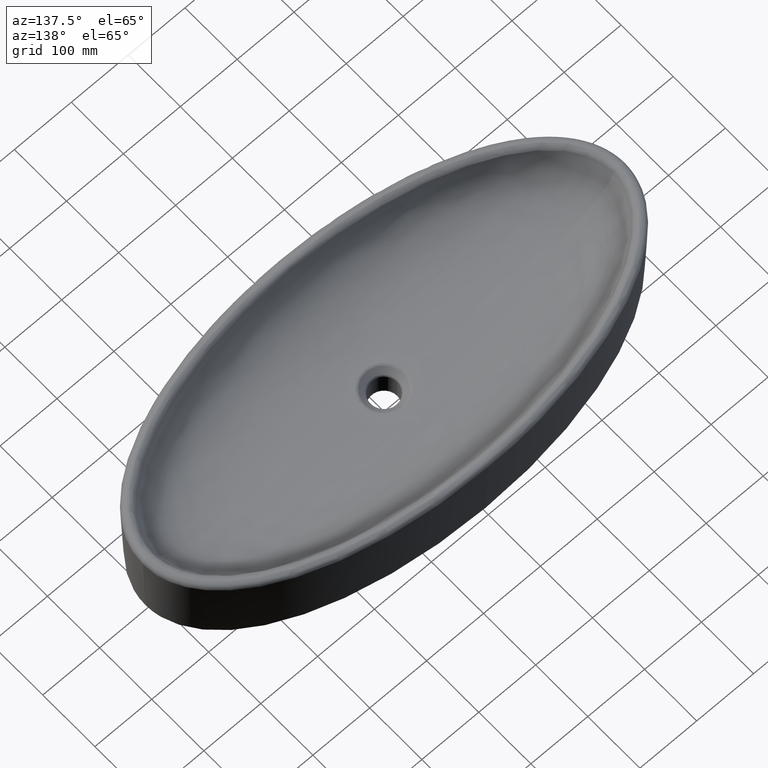
[diagram: clean part render]
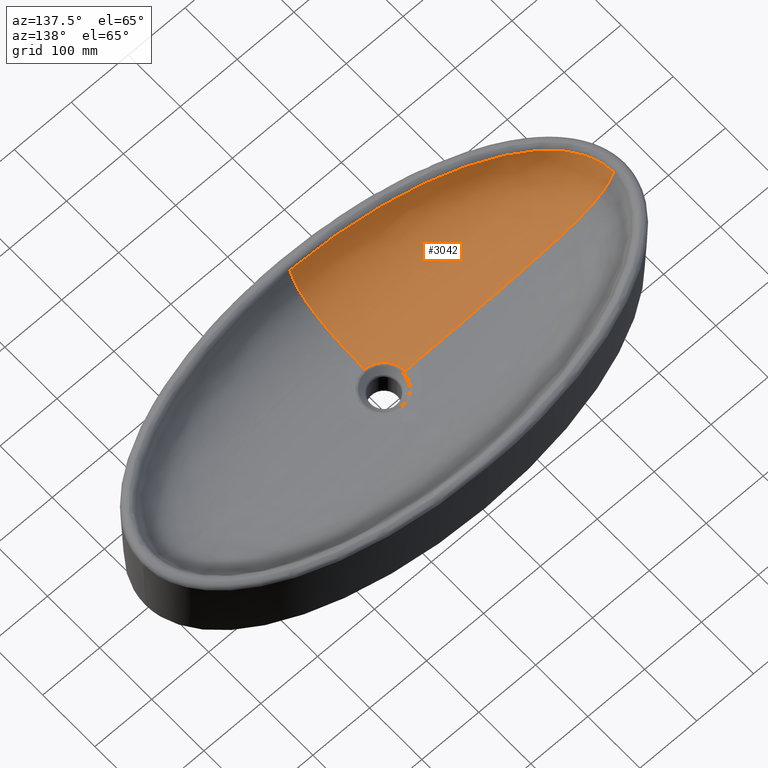
[diagram: same view with one face highlighted and labeled with its STEP entity id]
A machine part, auxiliary view. The second image highlights one B-rep face of the part: STEP entity #3042.
In plain terms, the highlighted face is a freeform B-spline surface patch.
Its self-contained STEP definition (entity closure, byte-faithful):
#353=CARTESIAN_POINT('',(0.E0,-3.716664425090E1,1.399421308377E1));
#394=CARTESIAN_POINT('',(0.E0,-1.806637705117E2,9.149223017208E1));
#395=CARTESIAN_POINT('',(0.E0,-1.801505233135E2,8.955953964587E1));
#396=CARTESIAN_POINT('',(0.E0,-1.784006939414E2,8.371473997448E1));
#397=CARTESIAN_POINT('',(0.E0,-1.747251877951E2,7.477182257466E1));
#398=CARTESIAN_POINT('',(0.E0,-1.691955635738E2,6.518522149962E1));
#399=CARTESIAN_POINT('',(0.E0,-1.627132684230E2,5.672396077614E1));
#400=CARTESIAN_POINT('',(0.E0,-1.553760905008E2,4.927252836666E1));
#401=CARTESIAN_POINT('',(0.E0,-1.445621081486E2,4.055524421652E1));
#402=CARTESIAN_POINT('',(0.E0,-1.292900557078E2,3.173122613531E1));
#403=CARTESIAN_POINT('',(0.E0,-1.086047588667E2,2.392877158933E1));
#404=CARTESIAN_POINT('',(0.E0,-8.617769540227E1,1.858212061283E1));
#405=CARTESIAN_POINT('',(0.E0,-6.234859657225E1,1.528996643977E1));
#406=CARTESIAN_POINT('',(0.E0,-4.570340382931E1,1.425747766918E1));
#407=CARTESIAN_POINT('',(0.E0,-3.716664425090E1,1.399421308377E1));
#546=CARTESIAN_POINT('',(-4.042420120499E2,0.E0,9.235765168712E1));
#547=CARTESIAN_POINT('',(-4.030826087994E2,0.E0,8.928290045811E1));
#548=CARTESIAN_POINT('',(-4.005765491294E2,0.E0,8.338416040453E1));
#549=CARTESIAN_POINT('',(-3.957640474297E2,0.E0,7.452083022323E1));
#550=CARTESIAN_POINT('',(-3.896276984285E2,0.E0,6.600443646954E1));
#551=CARTESIAN_POINT('',(-3.819075280144E2,0.E0,5.818312670054E1));
#552=CARTESIAN_POINT('',(-3.732094356476E2,0.E0,5.167141324819E1));
#553=CARTESIAN_POINT('',(-3.636606352700E2,0.E0,4.629893598380E1));
#554=CARTESIAN_POINT('',(-3.534048844027E2,0.E0,4.187318023945E1));
#555=CARTESIAN_POINT('',(-3.425757434911E2,0.E0,3.821528688718E1));
#556=CARTESIAN_POINT('',(-3.312886049459E2,0.E0,3.517072674877E1));
#557=CARTESIAN_POINT('',(-3.196371573437E2,0.E0,3.261403560430E1));
#558=CARTESIAN_POINT('',(-3.076957274654E2,0.E0,3.044567782294E1));
#559=CARTESIAN_POINT('',(-2.914640016444E2,0.E0,2.796943249629E1));
#560=CARTESIAN_POINT('',(-2.707111618603E2,0.E0,2.549440244041E1));
#561=CARTESIAN_POINT('',(-2.453202859142E2,0.E0,2.317716546877E1));
#562=CARTESIAN_POINT('',(-2.195897674607E2,0.E0,2.131476497496E1));
#563=CARTESIAN_POINT('',(-1.936177234917E2,0.E0,1.977580637216E1));
#564=CARTESIAN_POINT('',(-1.674691155820E2,0.E0,1.847329556130E1));
#565=CARTESIAN_POINT('',(-1.327551984972E2,0.E0,1.698820636487E1));
#566=CARTESIAN_POINT('',(-8.936226515403E1,0.E0,1.547281103443E1));
#567=CARTESIAN_POINT('',(-5.461774552841E1,0.E0,1.448236634630E1));
#568=CARTESIAN_POINT('',(-3.721806529145E1,0.E0,1.402386440346E1));
#607=CARTESIAN_POINT('',(-4.042420120499E2,0.E0,9.235765168712E1));
#609=CARTESIAN_POINT('',(0.E0,-3.716664425090E1,1.399421308377E1));
#610=CARTESIAN_POINT('',(-9.443669136349E-1,-3.716664409046E1,
1.399421245972E1));
#611=CARTESIAN_POINT('',(-2.826917025092E0,-3.709487283649E1,1.399464901198E1));
#612=CARTESIAN_POINT('',(-5.591913439122E0,-3.678182374033E1,1.399629434490E1));
#613=CARTESIAN_POINT('',(-8.332732811771E0,-3.626316715646E1,1.399868612157E1));
#614=CARTESIAN_POINT('',(-1.102081539016E1,-3.554287219321E1,1.400156790460E1));
#615=CARTESIAN_POINT('',(-1.364564391904E1,-3.462495360742E1,1.400470079876E1));
#616=CARTESIAN_POINT('',(-1.619258602549E1,-3.351450541782E1,1.400786823466E1));
#617=CARTESIAN_POINT('',(-1.864872460083E1,-3.221739630042E1,1.401089745289E1));
#618=CARTESIAN_POINT('',(-2.100109581034E1,-3.074043440326E1,1.401367083520E1));
#619=CARTESIAN_POINT('',(-2.323703544140E1,-2.909148173739E1,1.401612869838E1));
#620=CARTESIAN_POINT('',(-2.534405265374E1,-2.727962637464E1,1.401826621343E1));
#621=CARTESIAN_POINT('',(-2.731005490745E1,-2.531520928234E1,1.402010174024E1));
#622=CARTESIAN_POINT('',(-2.912391789730E1,-2.320934753284E1,1.402163135303E1));
#623=CARTESIAN_POINT('',(-3.077570567079E1,-2.097348314264E1,1.402281850930E1));
#624=CARTESIAN_POINT('',(-3.225631036818E1,-1.861982550794E1,1.402364360684E1));
#625=CARTESIAN_POINT('',(-3.355743827142E1,-1.616107649486E1,1.402415247867E1));
#626=CARTESIAN_POINT('',(-3.467118591563E1,-1.361297721237E1,1.402443236525E1));
#627=CARTESIAN_POINT('',(-3.559231238421E1,-1.098477978574E1,1.402454096531E1));
#628=CARTESIAN_POINT('',(-3.631168373220E1,-8.310883876191E0,1.402447866723E1));
#629=CARTESIAN_POINT('',(-3.683939749826E1,-5.536123382880E0,1.402427254633E1));
#630=CARTESIAN_POINT('',(-3.715247231698E1,-2.727458008740E0,1.402398944695E1));
#631=CARTESIAN_POINT('',(-3.721806266966E1,-9.047866522803E-1,
1.402386417567E1));
#632=CARTESIAN_POINT('',(-3.721806529145E1,0.E0,1.402386440346E1));
#634=CARTESIAN_POINT('',(-4.042420120499E2,0.E0,9.235765168712E1));
#635=CARTESIAN_POINT('',(-4.042420088232E2,-1.700178882704E0,9.235762404430E1));
#636=CARTESIAN_POINT('',(-4.041389037525E2,-5.108662020461E0,9.235583539357E1));
#637=CARTESIAN_POINT('',(-4.036700634791E2,-1.023822316561E1,9.234792743045E1));
#638=CARTESIAN_POINT('',(-4.028817635206E2,-1.538762319892E1,9.233492293485E1));
#639=CARTESIAN_POINT('',(-4.017658126647E2,-2.056187457017E1,9.231699021291E1));
#640=CARTESIAN_POINT('',(-4.003064928647E2,-2.578396065454E1,9.229444140315E1));
#641=CARTESIAN_POINT('',(-3.984838158588E2,-3.106982638181E1,9.226763154272E1));
#642=CARTESIAN_POINT('',(-3.962735065659E2,-3.643221920541E1,9.223700241929E1));
#643=CARTESIAN_POINT('',(-3.936447705062E2,-4.188646386099E1,9.220307047213E1));
#644=CARTESIAN_POINT('',(-3.905627997846E2,-4.744282758853E1,9.216637694208E1));
#645=CARTESIAN_POINT('',(-3.869850576422E2,-5.311417455132E1,9.212754761512E1));
#646=CARTESIAN_POINT('',(-3.828609664291E2,-5.891364506661E1,9.208721823962E1));
#647=CARTESIAN_POINT('',(-3.781298913159E2,-6.485568792591E1,9.204610535726E1));
#648=CARTESIAN_POINT('',(-3.727285747892E2,-7.094528852346E1,9.200488422720E1));
#649=CARTESIAN_POINT('',(-3.665905306772E2,-7.718048234435E1,9.196417157919E1));
#650=CARTESIAN_POINT('',(-3.596331768974E2,-8.356490608253E1,9.192460783265E1));
#651=CARTESIAN_POINT('',(-3.517653258901E2,-9.009757930237E1,9.188676073856E1));
#652=CARTESIAN_POINT('',(-3.428875095379E2,-9.677195137632E1,9.185111171042E1));
#653=CARTESIAN_POINT('',(-3.328855892737E2,-1.035798556451E2,9.181808879869E1));
#654=CARTESIAN_POINT('',(-3.216485405229E2,-1.104977583133E2,9.178791157132E1));
#655=CARTESIAN_POINT('',(-3.090782669461E2,-1.174843032374E2,9.176056183618E1));
#656=CARTESIAN_POINT('',(-2.950647573677E2,-1.244955022050E2,9.173580800567E1));
#657=CARTESIAN_POINT('',(-2.794983564396E2,-1.314799679858E2,9.171335946821E1));
#658=CARTESIAN_POINT('',(-2.622089187356E2,-1.383980154527E2,9.169260475382E1));
#659=CARTESIAN_POINT('',(-2.433389243756E2,-1.450829947314E2,9.167304058119E1));
#660=CARTESIAN_POINT('',(-2.232288442543E2,-1.513518543296E2,9.165411372731E1));
#661=CARTESIAN_POINT('',(-2.019152809411E2,-1.571548388E2,9.163496566771E1));
#662=CARTESIAN_POINT('',(-1.794757262986E2,-1.624318483544E2,9.161499541022E1));
#663=CARTESIAN_POINT('',(-1.559957192488E2,-1.671298587935E2,9.159394108790E1));
#664=CARTESIAN_POINT('',(-1.315731471324E2,-1.711996638622E2,9.157194620334E1));
#665=CARTESIAN_POINT('',(-1.063299309039E2,-1.745965995232E2,9.154969728527E1));
#666=CARTESIAN_POINT('',(-8.036761534909E1,-1.772848155052E2,9.152836943745E1));
#667=CARTESIAN_POINT('',(-5.392055942475E1,-1.792252229198E2,9.150974897559E1));
#668=CARTESIAN_POINT('',(-2.709313763060E1,-1.804004463524E2,9.149609900409E1));
#669=CARTESIAN_POINT('',(-9.062022403456E0,-1.806637995808E2,9.149225092207E1));
#670=CARTESIAN_POINT('',(0.E0,-1.806637705117E2,9.149223017208E1));
#1566=VERTEX_POINT('',#607);
#1569=VERTEX_POINT('',#670);
#1582=VERTEX_POINT('',#353);
#1585=VERTEX_POINT('',#632);
#2809=CARTESIAN_POINT('',(4.798978291754E0,-1.821852514801E2,9.818224681251E1));
#2810=CARTESIAN_POINT('',(-2.573640438387E1,-1.823393303414E2,
9.818224681251E1));
#2811=CARTESIAN_POINT('',(-6.923193587973E1,-1.807415927971E2,
9.818224681251E1));
#2812=CARTESIAN_POINT('',(-1.238339780221E2,-1.755384006735E2,
9.818224681251E1));
#2813=CARTESIAN_POINT('',(-1.872282222136E2,-1.644154453731E2,
9.818224681251E1));
#2814=CARTESIAN_POINT('',(-2.561076861437E2,-1.440657445856E2,
9.818224681251E1));
#2815=CARTESIAN_POINT('',(-3.027104313152E2,-1.244646462408E2,
9.818224681251E1));
#2816=CARTESIAN_POINT('',(-3.399283740897E2,-1.028347281118E2,
9.818224681251E1));
#2817=CARTESIAN_POINT('',(-3.663983861054E2,-8.149085314351E1,
9.818224681251E1));
#2818=CARTESIAN_POINT('',(-3.837208198754E2,-6.203337384888E1,
9.818224681251E1));
#2819=CARTESIAN_POINT('',(-3.939802360786E2,-4.654685090686E1,
9.818224681251E1));
#2820=CARTESIAN_POINT('',(-4.012774897890E2,-3.078787664383E1,
9.818224681251E1));
#2821=CARTESIAN_POINT('',(-4.048043643218E2,-1.861450581617E1,
9.818224681251E1));
#2822=CARTESIAN_POINT('',(-4.062736782806E2,-8.061565720890E0,
9.818224681251E1));
#2823=CARTESIAN_POINT('',(-4.064237265566E2,1.326487506852E-1,
9.818224681251E1));
#2824=CARTESIAN_POINT('',(-4.061303790636E2,5.092267684727E0,9.818224681251E1));
#2825=CARTESIAN_POINT('',(4.768763577503E0,-1.816797596932E2,9.558163484021E1));
#2826=CARTESIAN_POINT('',(-2.557260413908E1,-1.818076558112E2,
9.544798948528E1));
#2827=CARTESIAN_POINT('',(-6.883338163876E1,-1.801721708689E2,
9.524259359446E1));
#2828=CARTESIAN_POINT('',(-1.232121223740E2,-1.749186243264E2,
9.495917517054E1));
#2829=CARTESIAN_POINT('',(-1.864302889172E2,-1.637373588882E2,
9.459775597517E1));
#2830=CARTESIAN_POINT('',(-2.551589925641E2,-1.433491568370E2,
9.417666542140E1));
#2831=CARTESIAN_POINT('',(-3.016471388971E2,-1.237533259054E2,
9.388211817455E1));
#2832=CARTESIAN_POINT('',(-3.387369212932E2,-1.021718353801E2,
9.364276837278E1));
#2833=CARTESIAN_POINT('',(-3.650773241449E2,-8.091340932562E1,
9.346865813503E1));
#2834=CARTESIAN_POINT('',(-3.822889320524E2,-6.156144829274E1,
9.334845306027E1));
#2835=CARTESIAN_POINT('',(-3.924692928932E2,-4.617365231922E1,
9.327124645922E1));
#2836=CARTESIAN_POINT('',(-3.996998593321E2,-3.052828571414E1,
9.320757546570E1));
#2837=CARTESIAN_POINT('',(-4.031876002777E2,-1.845138956069E1,
9.316751770656E1));
#2838=CARTESIAN_POINT('',(-4.046352183745E2,-7.988470161218E0,
9.313885036749E1));
#2839=CARTESIAN_POINT('',(-4.047775824874E2,1.319872882141E-1,
9.311994085030E1));
#2840=CARTESIAN_POINT('',(-4.044835489258E2,5.045510786518E0,9.310967889110E1));
#2841=CARTESIAN_POINT('',(4.705311078921E0,-1.805312195719E2,9.054276837693E1));
#2842=CARTESIAN_POINT('',(-2.522898088002E1,-1.805922159749E2,
9.015964902811E1));
#2843=CARTESIAN_POINT('',(-6.798864583187E1,-1.788684215003E2,
8.956387661075E1));
#2844=CARTESIAN_POINT('',(-1.218732550797E2,-1.735120223021E2,
8.873043760817E1));
#2845=CARTESIAN_POINT('',(-1.846747099124E2,-1.622302358266E2,
8.765682249499E1));
#2846=CARTESIAN_POINT('',(-2.530267384978E2,-1.418010126482E2,
8.640795577817E1));
#2847=CARTESIAN_POINT('',(-2.992358815117E2,-1.222473302769E2,
8.554389567212E1));
#2848=CARTESIAN_POINT('',(-3.360333569200E2,-1.007908327340E2,
8.485632991916E1));
#2849=CARTESIAN_POINT('',(-3.620930458775E2,-7.972398602678E1,
8.437120181332E1));
#2850=CARTESIAN_POINT('',(-3.790717429351E2,-6.059668899358E1,
8.404774143195E1));
#2851=CARTESIAN_POINT('',(-3.890887848427E2,-4.541452174717E1,
8.384647011040E1));
#2852=CARTESIAN_POINT('',(-3.961834202662E2,-3.000249329093E1,
8.368606402421E1));
#2853=CARTESIAN_POINT('',(-3.995924234301E2,-1.812194087148E1,
8.358880190770E1));
#2854=CARTESIAN_POINT('',(-4.009970600784E2,-7.841157313311E0,
8.352160068384E1));
#2855=CARTESIAN_POINT('',(-4.011247193276E2,1.305924501887E-1,
8.347853922803E1));
#2856=CARTESIAN_POINT('',(-4.008298042613E2,4.951341854582E0,8.345559152915E1));
#2857=CARTESIAN_POINT('',(4.601083136842E0,-1.784159870619E2,8.344765083713E1));
#2858=CARTESIAN_POINT('',(-2.466571232331E1,-1.783330805966E2,
8.274337127878E1));
#2859=CARTESIAN_POINT('',(-6.657625363202E1,-1.764378656197E2,
8.162742156400E1));
#2860=CARTESIAN_POINT('',(-1.195684842286E2,-1.709190795977E2,
8.003289136631E1));
#2861=CARTESIAN_POINT('',(-1.815344543107E2,-1.595315273776E2,
7.794921475231E1));
#2862=CARTESIAN_POINT('',(-2.490720686706E2,-1.391440158888E2,
7.553950852587E1));
#2863=CARTESIAN_POINT('',(-2.946955287990E2,-1.197449097717E2,
7.390782881248E1));
#2864=CARTESIAN_POINT('',(-3.309325673850E2,-9.855756612386E1,
7.266140913273E1));
#2865=CARTESIAN_POINT('',(-3.564975424372E2,-7.783834118405E1,
7.183574048221E1));
#2866=CARTESIAN_POINT('',(-3.730877838988E2,-5.908788518767E1,
7.132720064444E1));
#2867=CARTESIAN_POINT('',(-3.828414371567E2,-4.423814227830E1,
7.103524965503E1));
#2868=CARTESIAN_POINT('',(-3.897227801624E2,-2.919415343897E1,
7.082427066929E1));
#2869=CARTESIAN_POINT('',(-3.930115663923E2,-1.761816403436E1,
7.071103117022E1));
#2870=CARTESIAN_POINT('',(-3.943527257461E2,-7.616821797514E0,
7.064280156107E1));
#2871=CARTESIAN_POINT('',(-3.944603044590E2,1.282881482553E-1,
7.060453484954E1));
#2872=CARTESIAN_POINT('',(-3.941655794171E2,4.808118912312E0,7.058600974442E1));
#2873=CARTESIAN_POINT('',(4.439910963231E0,-1.748740845270E2,7.481807424448E1));
#2874=CARTESIAN_POINT('',(-2.379927567864E1,-1.745646626768E2,
7.386567659532E1));
#2875=CARTESIAN_POINT('',(-6.429542945861E1,-1.724184931612E2,
7.226989472578E1));
#2876=CARTESIAN_POINT('',(-1.155921363114E2,-1.667028415152E2,
6.985317340285E1));
#2877=CARTESIAN_POINT('',(-1.756865450807E2,-1.552612316240E2,
6.656676272695E1));
#2878=CARTESIAN_POINT('',(-2.412694061927E2,-1.350889979047E2,
6.277248775659E1));
#2879=CARTESIAN_POINT('',(-2.855957608462E2,-1.160307018442E2,
6.029468934489E1));
#2880=CARTESIAN_POINT('',(-3.208090961900E2,-9.532193682181E1,
5.855254166745E1));
#2881=CARTESIAN_POINT('',(-3.456614551071E2,-7.515608913125E1,
5.756550285149E1));
#2882=CARTESIAN_POINT('',(-3.618103303621E2,-5.696957216559E1,
5.709816720638E1));
#2883=CARTESIAN_POINT('',(-3.713259582989E2,-4.260153673587E1,
5.691910744331E1));
#2884=CARTESIAN_POINT('',(-3.780712648100E2,-2.807872465914E1,
5.687568259958E1));
#2885=CARTESIAN_POINT('',(-3.813291443824E2,-1.692697657911E1,
5.691668087801E1));
#2886=CARTESIAN_POINT('',(-3.827019623760E2,-7.310447007595E0,
5.699097631441E1));
#2887=CARTESIAN_POINT('',(-3.828719523159E2,1.248563433993E-1,
5.706365369090E1));
#2888=CARTESIAN_POINT('',(-3.826300304744E2,4.612814185539E0,5.711097312545E1));
#2889=CARTESIAN_POINT('',(4.160201181191E0,-1.682737661373E2,6.334431640770E1));
#2890=CARTESIAN_POINT('',(-2.230152082892E1,-1.676605642686E2,
6.229095483619E1));
#2891=CARTESIAN_POINT('',(-6.021171213175E1,-1.651968097060E2,
6.048814331478E1));
#2892=CARTESIAN_POINT('',(-1.081571261770E2,-1.592736770741E2,
5.770297185498E1));
#2893=CARTESIAN_POINT('',(-1.642490157324E2,-1.478764908096E2,
5.386486203567E1));
#2894=CARTESIAN_POINT('',(-2.255148371569E2,-1.282044824282E2,
4.942049459418E1));
#2895=CARTESIAN_POINT('',(-2.670467719153E2,-1.098065317744E2,
4.653446533938E1));
#2896=CARTESIAN_POINT('',(-3.002271248239E2,-8.996322148937E1,
4.453979305855E1));
#2897=CARTESIAN_POINT('',(-3.238492911662E2,-7.075840697316E1,
4.345357697102E1));
#2898=CARTESIAN_POINT('',(-3.393785116456E2,-5.352505293405E1,
4.298344772511E1));
#2899=CARTESIAN_POINT('',(-3.486513584073E2,-3.995770037120E1,
4.284007350567E1));
#2900=CARTESIAN_POINT('',(-3.553617592917E2,-2.628887020221E1,
4.285855417788E1));
#2901=CARTESIAN_POINT('',(-3.587287998762E2,-1.582396022713E1,
4.295988091003E1));
#2902=CARTESIAN_POINT('',(-3.602927063729E2,-6.824051561769E0,
4.309149062617E1));
#2903=CARTESIAN_POINT('',(-3.606680411836E2,1.188382315390E-1,
4.320944176962E1));
#2904=CARTESIAN_POINT('',(-3.605716159550E2,4.303384047717E0,4.328382186528E1));
#2905=CARTESIAN_POINT('',(3.793482152466E0,-1.588903298332E2,5.188507601931E1));
#2906=CARTESIAN_POINT('',(-2.033620962829E1,-1.580437812543E2,
5.095675577502E1));
#2907=CARTESIAN_POINT('',(-5.489259150028E1,-1.553719067995E2,
4.937037298313E1));
#2908=CARTESIAN_POINT('',(-9.856007619328E1,-1.493936793094E2,
4.692605714694E1));
#2909=CARTESIAN_POINT('',(-1.496011569592E2,-1.382476055873E2,
4.356036980401E1));
#2910=CARTESIAN_POINT('',(-2.053555558860E2,-1.193731006411E2,
3.963715417526E1));
#2911=CARTESIAN_POINT('',(-2.432020680187E2,-1.019007050795E2,
3.705695667353E1));
#2912=CARTESIAN_POINT('',(-2.735275375897E2,-8.321073875105E1,
3.522853062415E1));
#2913=CARTESIAN_POINT('',(-2.952226762959E2,-6.525281691738E1,
3.418139910909E1));
#2914=CARTESIAN_POINT('',(-3.095826162072E2,-4.923567852009E1,
3.367709357898E1));
#2915=CARTESIAN_POINT('',(-3.182252075085E2,-3.667958333443E1,
3.347761016102E1));
#2916=CARTESIAN_POINT('',(-3.245568240197E2,-2.407967940170E1,
3.342071027466E1));
#2917=CARTESIAN_POINT('',(-3.278045389285E2,-1.446777029432E1,
3.345566942194E1));
#2918=CARTESIAN_POINT('',(-3.293924813350E2,-6.228266035447E0,
3.352742010956E1));
#2919=CARTESIAN_POINT('',(-3.298644119464E2,1.109454201289E-1,
3.359940870275E1));
#2920=CARTESIAN_POINT('',(-3.298562239001E2,3.924948455594E0,3.364669783168E1));
#2921=CARTESIAN_POINT('',(3.346267589755E0,-1.461713134760E2,4.110381696513E1));
#2922=CARTESIAN_POINT('',(-1.793831081509E1,-1.452102174798E2,
4.040341203535E1));
#2923=CARTESIAN_POINT('',(-4.843126638865E1,-1.425070905935E2,
3.920869456294E1));
#2924=CARTESIAN_POINT('',(-8.696575496316E1,-1.367083894382E2,
3.737471784599E1));
#2925=CARTESIAN_POINT('',(-1.319907705682E2,-1.261118978708E2,
3.485787545252E1));
#2926=CARTESIAN_POINT('',(-1.811373601967E2,-1.084248301600E2,
3.192263513991E1));
#2927=CARTESIAN_POINT('',(-2.144828573186E2,-9.220077322107E1,
2.998427375269E1));
#2928=CARTESIAN_POINT('',(-2.412034289577E2,-7.499369681403E1,
2.859730214499E1));
#2929=CARTESIAN_POINT('',(-2.603380033113E2,-5.859548859569E1,
2.778784505906E1));
#2930=CARTESIAN_POINT('',(-2.730311850755E2,-4.407442597280E1,
2.738385139137E1));
#2931=CARTESIAN_POINT('',(-2.806943342557E2,-3.275014271488E1,
2.721279479012E1));
#2932=CARTESIAN_POINT('',(-2.863390003956E2,-2.144176485441E1,
2.714842922945E1));
#2933=CARTESIAN_POINT('',(-2.892640885786E2,-1.285351558980E1,
2.715847498315E1));
#2934=CARTESIAN_POINT('',(-2.907288309617E2,-5.521244430004E0,
2.719913627688E1));
#2935=CARTESIAN_POINT('',(-2.912026251783E2,1.010925669875E-1,
2.724364469066E1));
#2936=CARTESIAN_POINT('',(-2.912333366966E2,3.476397182605E0,2.727370512197E1));
#2937=CARTESIAN_POINT('',(2.826281856461E0,-1.296451826723E2,3.157394254354E1));
#2938=CARTESIAN_POINT('',(-1.514969497949E1,-1.286800527617E2,
3.110975692594E1));
#2939=CARTESIAN_POINT('',(-4.092973499779E1,-1.261229162267E2,
3.033233410959E1));
#2940=CARTESIAN_POINT('',(-7.353314011828E1,-1.207604802051E2,
2.916395795819E1));
#2941=CARTESIAN_POINT('',(-1.116259840946E2,-1.110672602054E2,
2.758949676864E1));
#2942=CARTESIAN_POINT('',(-1.531352555203E2,-9.504913480718E1,
2.577278579786E1));
#2943=CARTESIAN_POINT('',(-1.812373587178E2,-8.047223161410E1,
2.457645673506E1));
#2944=CARTESIAN_POINT('',(-2.037011401298E2,-6.514616117845E1,
2.371670862822E1));
#2945=CARTESIAN_POINT('',(-2.197522786845E2,-5.067379958584E1,
2.320877332439E1));
#2946=CARTESIAN_POINT('',(-2.303874468856E2,-3.796686548900E1,
2.294908995083E1));
#2947=CARTESIAN_POINT('',(-2.368070126605E2,-2.811995011066E1,
2.283433848773E1));
#2948=CARTESIAN_POINT('',(-2.415411511994E2,-1.834654307310E1,
2.278496185767E1));
#2949=CARTESIAN_POINT('',(-2.440029919448E2,-1.096579945770E1,
2.278377554846E1));
#2950=CARTESIAN_POINT('',(-2.452483761185E2,-4.697026678276E0,
2.280278274740E1));
#2951=CARTESIAN_POINT('',(-2.456662670784E2,8.903210778286E-2,
2.282582370689E1));
#2952=CARTESIAN_POINT('',(-2.457076903786E2,2.954122318222E0,2.284184439886E1));
#2953=CARTESIAN_POINT('',(2.117248074779E0,-1.046414355960E2,2.216432713629E1));
#2954=CARTESIAN_POINT('',(-1.134716382036E1,-1.038071595187E2,
2.194579730673E1));
#2955=CARTESIAN_POINT('',(-3.070250492134E1,-1.016521907200E2,
2.160240600075E1));
#2956=CARTESIAN_POINT('',(-5.522407607007E1,-9.715685453985E1,
2.112471154589E1));
#2957=CARTESIAN_POINT('',(-8.387122816925E1,-8.903774584855E1,
2.052690215138E1));
#2958=CARTESIAN_POINT('',(-1.149557515792E2,-7.570023855600E1,
1.987753806517E1));
#2959=CARTESIAN_POINT('',(-1.358794138341E2,-6.366085804163E1,
1.946644279604E1));
#2960=CARTESIAN_POINT('',(-1.524884516981E2,-5.114615175997E1,
1.917956560404E1));
#2961=CARTESIAN_POINT('',(-1.642710358794E2,-3.948704159193E1,
1.901598997405E1));
#2962=CARTESIAN_POINT('',(-1.720334787507E2,-2.938724790640E1,
1.893690936259E1));
#2963=CARTESIAN_POINT('',(-1.767011884849E2,-2.164194456389E1,
1.890536647668E1));
#2964=CARTESIAN_POINT('',(-1.801347826394E2,-1.403349378860E1,
1.889611837969E1));
#2965=CARTESIAN_POINT('',(-1.819187431959E2,-8.343758047513E0,
1.890138325550E1));
#2966=CARTESIAN_POINT('',(-1.828250167338E2,-3.555544685460E0,
1.891257442030E1));
#2967=CARTESIAN_POINT('',(-1.831359479671E2,7.158549899417E-2,
1.892387888135E1));
#2968=CARTESIAN_POINT('',(-1.831735829752E2,2.231618295265E0,1.893133878332E1));
#2969=CARTESIAN_POINT('',(1.518997522688E0,-8.121405886733E1,1.734001677771E1));
#2970=CARTESIAN_POINT('',(-8.138718313490E0,-8.061012242706E1,
1.725272643604E1));
#2971=CARTESIAN_POINT('',(-2.207412136948E1,-7.897463831187E1,
1.713505249632E1));
#2972=CARTESIAN_POINT('',(-3.977972733790E1,-7.545483259292E1,
1.700572761077E1));
#2973=CARTESIAN_POINT('',(-6.046089696234E1,-6.897433003442E1,
1.688702307995E1));
#2974=CARTESIAN_POINT('',(-8.274396453969E1,-5.827168911566E1,
1.679889852253E1));
#2975=CARTESIAN_POINT('',(-9.759547123163E1,-4.864630662744E1,
1.676146038231E1));
#2976=CARTESIAN_POINT('',(-1.092374978682E2,-3.873908623424E1,
1.674566759195E1));
#2977=CARTESIAN_POINT('',(-1.173839114383E2,-2.963699030144E1,
1.674448957782E1));
#2978=CARTESIAN_POINT('',(-1.226865557045E2,-2.187154627370E1,
1.675023185576E1));
#2979=CARTESIAN_POINT('',(-1.258457582754E2,-1.598987507096E1,
1.675750130998E1));
#2980=CARTESIAN_POINT('',(-1.281500799732E2,-1.028543086944E1,
1.676661821295E1));
#2981=CARTESIAN_POINT('',(-1.293370365375E2,-6.072509011896E0,
1.677441538835E1));
#2982=CARTESIAN_POINT('',(-1.299354940013E2,-2.569714444915E0,
1.678143523081E1));
#2983=CARTESIAN_POINT('',(-1.301395036097E2,5.586489632187E-2,
1.678681022408E1));
#2984=CARTESIAN_POINT('',(-1.301639581105E2,1.608345005043E0,1.678999320446E1));
#2985=CARTESIAN_POINT('',(1.037552034859E0,-6.108165204970E1,1.507777251554E1));
#2986=CARTESIAN_POINT('',(-5.556708801872E0,-6.073362491848E1,
1.505088847658E1));
#2987=CARTESIAN_POINT('',(-1.513027427448E1,-5.961920689478E1,
1.502801894929E1));
#2988=CARTESIAN_POINT('',(-2.735040851996E1,-5.701889763461E1,
1.502982158655E1));
#2989=CARTESIAN_POINT('',(-4.162001327073E1,-5.202229029174E1,
1.507287371588E1));
#2990=CARTESIAN_POINT('',(-5.681687186715E1,-4.363496904590E1,
1.515783464609E1));
#2991=CARTESIAN_POINT('',(-6.677740507771E1,-3.609495047037E1,
1.522940820603E1));
#2992=CARTESIAN_POINT('',(-7.441596638049E1,-2.841111412095E1,
1.528953541805E1));
#2993=CARTESIAN_POINT('',(-7.962880624456E1,-2.146677495429E1,
1.533205116582E1));
#2994=CARTESIAN_POINT('',(-8.294444726788E1,-1.565563765918E1,
1.535933451032E1));
#2995=CARTESIAN_POINT('',(-8.488336410258E1,-1.132603811670E1,
1.537554252467E1));
#2996=CARTESIAN_POINT('',(-8.627220449952E1,-7.199983067250E0,
1.538777116779E1));
#2997=CARTESIAN_POINT('',(-8.697339260832E1,-4.206401303827E0,
1.539470025647E1));
#2998=CARTESIAN_POINT('',(-8.731942766347E1,-1.761211982084E0,
1.539921778777E1));
#2999=CARTESIAN_POINT('',(-8.743369840579E1,4.263900541024E-2,
1.540193479690E1));
#3000=CARTESIAN_POINT('',(-8.744529983337E1,1.097548861136E0,1.540333946856E1));
#3001=CARTESIAN_POINT('',(6.748766678406E-1,-4.526034640129E1,
1.418193432569E1));
#3002=CARTESIAN_POINT('',(-3.611687830559E0,-4.514050921061E1,
1.417744071408E1));
#3003=CARTESIAN_POINT('',(-9.899012590104E0,-4.447073880373E1,
1.418158712328E1));
#3004=CARTESIAN_POINT('',(-1.798553932236E1,-4.263182017601E1,
1.420587832410E1));
#3005=CARTESIAN_POINT('',(-2.742247699232E1,-3.883830323294E1,
1.425619243122E1));
#3006=CARTESIAN_POINT('',(-3.727645117144E1,-3.229608240264E1,
1.432803449799E1));
#3007=CARTESIAN_POINT('',(-4.354818393512E1,-2.640076899500E1,
1.438209553713E1));
#3008=CARTESIAN_POINT('',(-4.816629425591E1,-2.045613138197E1,
1.442436338374E1));
#3009=CARTESIAN_POINT('',(-5.116492371498E1,-1.518836633137E1,
1.445268503039E1));
#3010=CARTESIAN_POINT('',(-5.297996875576E1,-1.088795947381E1,
1.446981549308E1));
#3011=CARTESIAN_POINT('',(-5.399672962801E1,-7.754099010258E0,
1.447938343232E1));
#3012=CARTESIAN_POINT('',(-5.469306317454E1,-4.840456896790E0,
1.448604744219E1));
#3013=CARTESIAN_POINT('',(-5.502616319040E1,-2.781085568828E0,
1.448941013622E1));
#3014=CARTESIAN_POINT('',(-5.518022362595E1,-1.144395210074E0,
1.449132596675E1));
#3015=CARTESIAN_POINT('',(-5.522550570976E1,3.238941402681E-2,
1.449229124106E1));
#3016=CARTESIAN_POINT('',(-5.522659547306E1,7.080299927665E-1,
1.449273337262E1));
#3017=CARTESIAN_POINT('',(4.315677811022E-1,-3.437467059799E1,
1.391738122517E1));
#3018=CARTESIAN_POINT('',(-2.306823767120E0,-3.442387941594E1,
1.391749825146E1));
#3019=CARTESIAN_POINT('',(-6.389571536523E0,-3.407524595418E1,
1.392017368718E1));
#3020=CARTESIAN_POINT('',(-1.170320701091E1,-3.277610682652E1,
1.392641813122E1));
#3021=CARTESIAN_POINT('',(-1.789841957367E1,-2.982431600521E1,
1.393235829355E1));
#3022=CARTESIAN_POINT('',(-2.416817026083E1,-2.455998258505E1,
1.393413859303E1));
#3023=CARTESIAN_POINT('',(-2.796493495557E1,-1.979727812526E1,
1.393407885794E1));
#3024=CARTESIAN_POINT('',(-3.055599214687E1,-1.504521550461E1,
1.393253780944E1));
#3025=CARTESIAN_POINT('',(-3.206810777586E1,-1.092316366843E1,
1.393141284549E1));
#3026=CARTESIAN_POINT('',(-3.287525945949E1,-7.652404628130E0,
1.393060665059E1));
#3027=CARTESIAN_POINT('',(-3.327233089204E1,-5.332044905274E0,
1.393009792808E1));
#3028=CARTESIAN_POINT('',(-3.350295351785E1,-3.241905535243E0,
1.392972153631E1));
#3029=CARTESIAN_POINT('',(-3.358820750075E1,-1.816152684707E0,
1.392948871937E1));
#3030=CARTESIAN_POINT('',(-3.361267606902E1,-7.271046729974E-1,
1.392937942819E1));
#3031=CARTESIAN_POINT('',(-3.361104890880E1,2.538873418620E-2,
1.392929212665E1));
#3032=CARTESIAN_POINT('',(-3.360470725225E1,4.445849941498E-1,
1.392925739344E1));
#3033=B_SPLINE_SURFACE_WITH_KNOTS('',5,5,((#2809,#2810,#2811,#2812,#2813,#2814,
#2815,#2816,#2817,#2818,#2819,#2820,#2821,#2822,#2823,#2824),(#2825,#2826,#2827,
#2828,#2829,#2830,#2831,#2832,#2833,#2834,#2835,#2836,#2837,#2838,#2839,#2840),(
#2841,#2842,#2843,#2844,#2845,#2846,#2847,#2848,#2849,#2850,#2851,#2852,#2853,
#2854,#2855,#2856),(#2857,#2858,#2859,#2860,#2861,#2862,#2863,#2864,#2865,#2866,
#2867,#2868,#2869,#2870,#2871,#2872),(#2873,#2874,#2875,#2876,#2877,#2878,#2879,
#2880,#2881,#2882,#2883,#2884,#2885,#2886,#2887,#2888),(#2889,#2890,#2891,#2892,
#2893,#2894,#2895,#2896,#2897,#2898,#2899,#2900,#2901,#2902,#2903,#2904),(#2905,
#2906,#2907,#2908,#2909,#2910,#2911,#2912,#2913,#2914,#2915,#2916,#2917,#2918,
#2919,#2920),(#2921,#2922,#2923,#2924,#2925,#2926,#2927,#2928,#2929,#2930,#2931,
#2932,#2933,#2934,#2935,#2936),(#2937,#2938,#2939,#2940,#2941,#2942,#2943,#2944,
#2945,#2946,#2947,#2948,#2949,#2950,#2951,#2952),(#2953,#2954,#2955,#2956,#2957,
#2958,#2959,#2960,#2961,#2962,#2963,#2964,#2965,#2966,#2967,#2968),(#2969,#2970,
#2971,#2972,#2973,#2974,#2975,#2976,#2977,#2978,#2979,#2980,#2981,#2982,#2983,
#2984),(#2985,#2986,#2987,#2988,#2989,#2990,#2991,#2992,#2993,#2994,#2995,#2996,
#2997,#2998,#2999,#3000),(#3001,#3002,#3003,#3004,#3005,#3006,#3007,#3008,#3009,
#3010,#3011,#3012,#3013,#3014,#3015,#3016),(#3017,#3018,#3019,#3020,#3021,#3022,
#3023,#3024,#3025,#3026,#3027,#3028,#3029,#3030,#3031,#3032)),.UNSPECIFIED.,.F.,
.F.,.F.,(6,1,1,1,1,1,1,1,1,6),(6,1,1,1,1,1,1,1,1,1,1,6),(0.E0,6.25E-2,1.25E-1,
1.875E-1,2.5E-1,3.75E-1,5.E-1,6.25E-1,7.5E-1,1.003795763400E0),(
-8.134308944394E-3,2.5E-1,3.75E-1,5.E-1,6.25E-1,7.5E-1,8.125E-1,8.75E-1,
9.0625E-1,9.375E-1,9.6875E-1,1.008396907887E0),.UNSPECIFIED.);
#3035=ORIENTED_EDGE('',*,*,#3034,.F.);
#3036=ORIENTED_EDGE('',*,*,#2107,.F.);
#3038=ORIENTED_EDGE('',*,*,#3037,.F.);
#3039=ORIENTED_EDGE('',*,*,#2801,.T.);
#3040=EDGE_LOOP('',(#3035,#3036,#3038,#3039));
#3041=FACE_OUTER_BOUND('',#3040,.F.);
#3042=ADVANCED_FACE('',(#3041),#3033,.T.);
#408=B_SPLINE_CURVE_WITH_KNOTS('',3,(#394,#395,#396,#397,#398,#399,#400,#401,
#402,#403,#404,#405,#406,#407),.UNSPECIFIED.,.F.,.F.,(4,1,1,1,1,1,1,1,1,1,1,4),(
0.E0,3.083714445519E-2,9.609308622489E-2,1.613490279946E-1,2.266049697643E-1,
2.918609115340E-1,3.571168533037E-1,4.876287368431E-1,6.181406203825E-1,
7.486525039219E-1,8.743262519610E-1,1.E0),.UNSPECIFIED.);
#569=B_SPLINE_CURVE_WITH_KNOTS('',3,(#546,#547,#548,#549,#550,#551,#552,#553,
#554,#555,#556,#557,#558,#559,#560,#561,#562,#563,#564,#565,#566,#567,#568),
.UNSPECIFIED.,.F.,.F.,(4,1,1,1,1,1,1,1,1,1,1,1,1,1,1,1,1,1,1,1,4),(0.E0,
2.436153825841E-2,4.872307651682E-2,8.059153233203E-2,1.124599881472E-1,
1.443284439625E-1,1.761968997777E-1,2.080653555929E-1,2.399338114081E-1,
2.718022672233E-1,3.036707230385E-1,3.355391788537E-1,3.674076346689E-1,
4.311445462994E-1,4.948814579298E-1,5.586183695602E-1,6.223552811906E-1,
6.860921928211E-1,7.498291044515E-1,8.749145522257E-1,1.E0),.UNSPECIFIED.);
#633=B_SPLINE_CURVE_WITH_KNOTS('',3,(#609,#610,#611,#612,#613,#614,#615,#616,
#617,#618,#619,#620,#621,#622,#623,#624,#625,#626,#627,#628,#629,#630,#631,
#632),.UNSPECIFIED.,.F.,.F.,(4,1,1,1,1,1,1,1,1,1,1,1,1,1,1,1,1,1,1,1,1,4),(0.E0,
4.761904761905E-2,9.523809523810E-2,1.428571428571E-1,1.904761904762E-1,
2.380952380952E-1,2.857142857143E-1,3.333333333333E-1,3.809523809524E-1,
4.285714285714E-1,4.761904761905E-1,5.238095238095E-1,5.714285714286E-1,
6.190476190476E-1,6.666666666667E-1,7.142857142857E-1,7.619047619048E-1,
8.095238095238E-1,8.571428571429E-1,9.047619047619E-1,9.523809523810E-1,1.E0),
.UNSPECIFIED.);
#671=B_SPLINE_CURVE_WITH_KNOTS('',3,(#634,#635,#636,#637,#638,#639,#640,#641,
#642,#643,#644,#645,#646,#647,#648,#649,#650,#651,#652,#653,#654,#655,#656,#657,
#658,#659,#660,#661,#662,#663,#664,#665,#666,#667,#668,#669,#670),.UNSPECIFIED.,
.F.,.F.,(4,1,1,1,1,1,1,1,1,1,1,1,1,1,1,1,1,1,1,1,1,1,1,1,1,1,1,1,1,1,1,1,1,1,4),
(0.E0,2.941176470588E-2,5.882352941176E-2,8.823529411765E-2,1.176470588235E-1,
1.470588235294E-1,1.764705882353E-1,2.058823529412E-1,2.352941176471E-1,
2.647058823529E-1,2.941176470588E-1,3.235294117647E-1,3.529411764706E-1,
3.823529411765E-1,4.117647058824E-1,4.411764705882E-1,4.705882352941E-1,5.E-1,
5.294117647059E-1,5.588235294118E-1,5.882352941176E-1,6.176470588235E-1,
6.470588235294E-1,6.764705882353E-1,7.058823529412E-1,7.352941176471E-1,
7.647058823529E-1,7.941176470588E-1,8.235294117647E-1,8.529411764706E-1,
8.823529411765E-1,9.117647058824E-1,9.411764705882E-1,9.705882352941E-1,1.E0),
.UNSPECIFIED.);
#2107=EDGE_CURVE('',#1569,#1582,#408,.T.);
#2801=EDGE_CURVE('',#1566,#1585,#569,.T.);
#3034=EDGE_CURVE('',#1582,#1585,#633,.T.);
#3037=EDGE_CURVE('',#1566,#1569,#671,.T.);